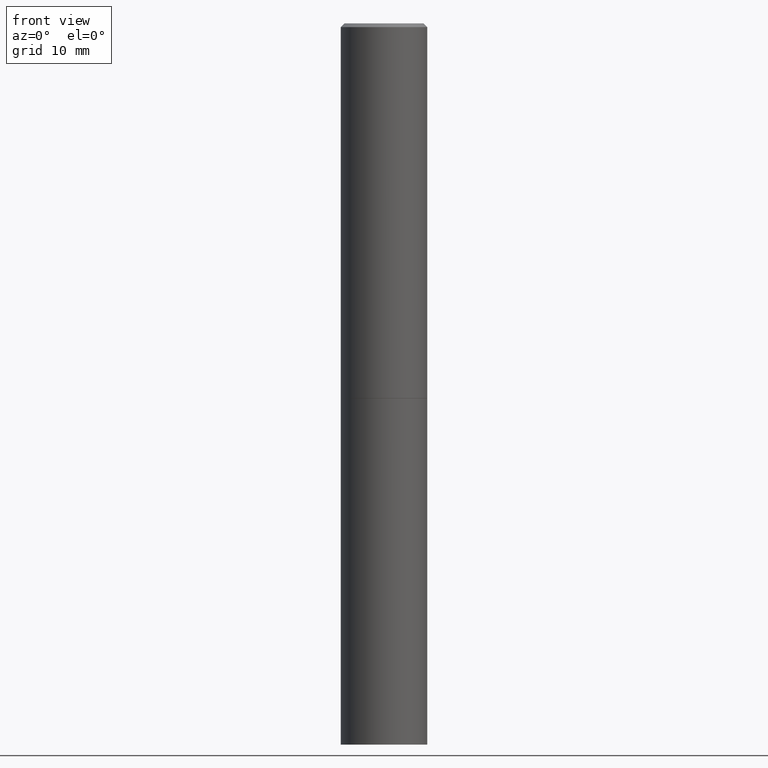
[diagram: clean part render]
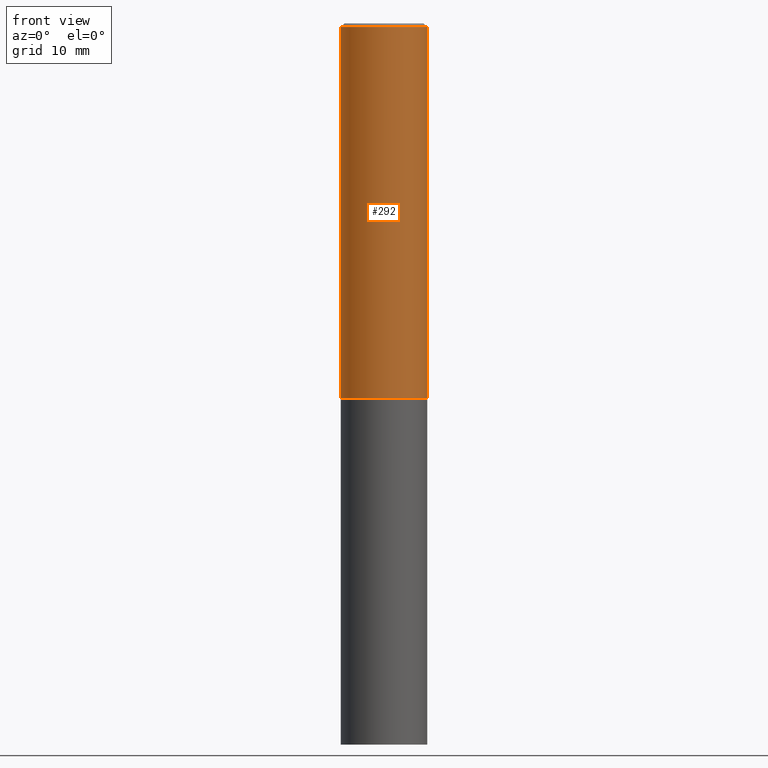
[diagram: same view with one face highlighted and labeled with its STEP entity id]
A machine part, front view. The second image highlights one B-rep face of the part: STEP entity #292.
In plain terms, the highlighted cylindrical surface (partial cylindrical patch) has radius 5.9995 mm, axis along (-0, 0, 1).
Its self-contained STEP definition (entity closure, byte-faithful):
#18 = DIRECTION ( 'NONE',  ( -2.445468806185136877E-29, 3.491481338843145188E-15, 1.000000000000000000 ) ) ;
#29 = CARTESIAN_POINT ( 'NONE',  ( -0.2361999999999997157, 1.579546157692631255E-15, -0.02000000000000005940 ) ) ;
#32 = DIRECTION ( 'NONE',  ( -2.445468806185136597E-29, 3.491481338843145583E-15, 1.000000000000000000 ) ) ;
#60 = DIRECTION ( 'NONE',  ( 1.000000000000000000, -6.982962677686266711E-15, 4.876176775795935793E-29 ) ) ;
#70 = EDGE_CURVE ( 'NONE', #286, #195, #107, .T. ) ;
#107 = CIRCLE ( 'NONE', #197, 0.2361999999999997157 ) ;
#109 = LINE ( 'NONE', #325, #175 ) ;
#116 = FACE_OUTER_BOUND ( 'NONE', #311, .T. ) ;
#119 = AXIS2_PLACEMENT_3D ( 'NONE', #291, #295, #60 ) ;
#126 = VERTEX_POINT ( 'NONE', #158 ) ;
#154 = VERTEX_POINT ( 'NONE', #161 ) ;
#157 = EDGE_CURVE ( 'NONE', #126, #286, #109, .T. ) ;
#158 = CARTESIAN_POINT ( 'NONE',  ( -0.2362000000000000210, -1.928747429293494697E-15, -2.046200000000000241 ) ) ;
#161 = CARTESIAN_POINT ( 'NONE',  ( 0.2362000000000000210, -8.793644900010341720E-15, -2.046200000000000241 ) ) ;
#166 = LINE ( 'NONE', #194, #314 ) ;
#175 = VECTOR ( 'NONE', #18, 39.37007874015748143 ) ;
#176 = CIRCLE ( 'NONE', #230, 0.2362000000000000210 ) ;
#193 = CARTESIAN_POINT ( 'NONE',  ( 4.890937612370288047E-31, -6.982962677686311331E-17, -0.02000000000000005940 ) ) ;
#194 = CARTESIAN_POINT ( 'NONE',  ( 0.2361999999999998545, -1.649375784469495145E-15, 1.151752954442999387E-29 ) ) ;
#195 = VERTEX_POINT ( 'NONE', #327 ) ;
#197 = AXIS2_PLACEMENT_3D ( 'NONE', #193, #347, #275 ) ;
#205 = CYLINDRICAL_SURFACE ( 'NONE', #119, 0.2361999999999998545 ) ;
#230 = AXIS2_PLACEMENT_3D ( 'NONE', #257, #32, #294 ) ;
#250 = ORIENTED_EDGE ( 'NONE', *, *, #268, .T. ) ;
#257 = CARTESIAN_POINT ( 'NONE',  ( 5.003918271216026638E-29, -7.144269115540845195E-15, -2.046200000000000241 ) ) ;
#258 = ORIENTED_EDGE ( 'NONE', *, *, #157, .F. ) ;
#268 = EDGE_CURVE ( 'NONE', #154, #195, #166, .T. ) ;
#275 = DIRECTION ( 'NONE',  ( 1.000000000000000000, -6.982962677686266711E-15, 0.000000000000000000 ) ) ;
#278 = ORIENTED_EDGE ( 'NONE', *, *, #70, .F. ) ;
#283 = EDGE_CURVE ( 'NONE', #126, #154, #176, .T. ) ;
#286 = VERTEX_POINT ( 'NONE', #29 ) ;
#291 = CARTESIAN_POINT ( 'NONE',  ( 0.000000000000000000, 0.000000000000000000, 0.000000000000000000 ) ) ;
#292 = ADVANCED_FACE ( 'NONE', ( #116 ), #205, .T. ) ;
#294 = DIRECTION ( 'NONE',  ( 1.000000000000000000, -6.982962677686268288E-15, 0.000000000000000000 ) ) ;
#295 = DIRECTION ( 'NONE',  ( -2.445468806185136597E-29, 3.491481338843145583E-15, 1.000000000000000000 ) ) ;
#304 = DIRECTION ( 'NONE',  ( -2.445468806185136877E-29, 3.491481338843145188E-15, 1.000000000000000000 ) ) ;
#311 = EDGE_LOOP ( 'NONE', ( #258, #335, #250, #278 ) ) ;
#314 = VECTOR ( 'NONE', #304, 39.37007874015748143 ) ;
#325 = CARTESIAN_POINT ( 'NONE',  ( -0.2361999999999998545, 1.678301941865355605E-15, -1.161852468318208056E-29 ) ) ;
#327 = CARTESIAN_POINT ( 'NONE',  ( 0.2361999999999997157, -1.690279253850496996E-15, -0.02000000000000005940 ) ) ;
#335 = ORIENTED_EDGE ( 'NONE', *, *, #283, .T. ) ;
#347 = DIRECTION ( 'NONE',  ( -2.445468806185136597E-29, 3.491481338843145583E-15, 1.000000000000000000 ) ) ;